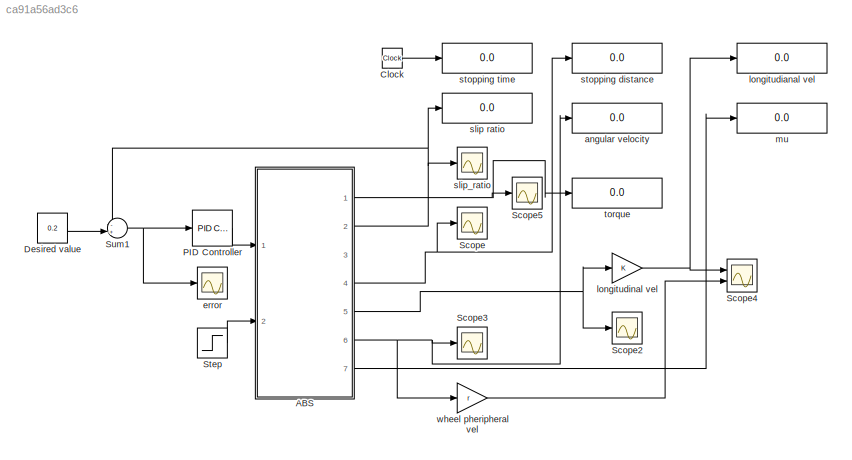
MODEL slx_ca91a56ad3c6
KIND model
CONFIG AbsTol = auto
CONFIG EnableMultiTasking = off
CONFIG FixedStep = auto
CONFIG MaxStep = auto
CONFIG MinStep = auto
CONFIG RelTol = 1e-3
CONFIG SampleTimeConstraint = Unconstrained
CONFIG SolverName = VariableStepAuto
CONFIG StartTime = 0.0
CONFIG StopTime = 50
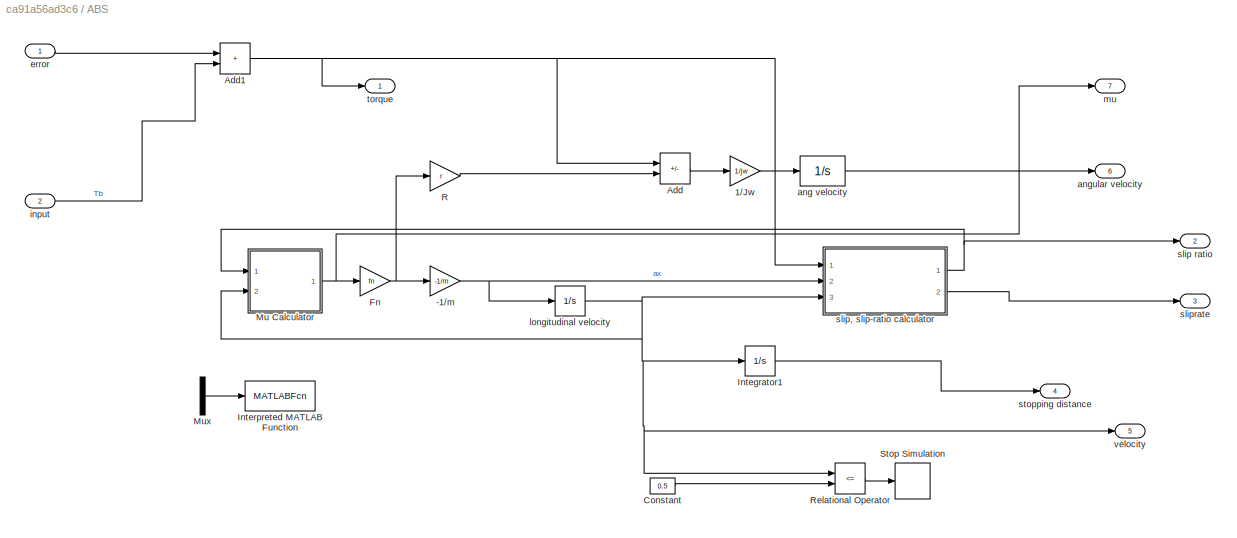
BLOCK [SubSystem] ABS
  Ports = [2, 7]
  RequestExecContextInheritance = off
BLOCK [Gain] ABS/-1//m
  Gain = -1/m
BLOCK [Gain] ABS/1//Jw
  Gain = 1/jw
BLOCK [Sum] ABS/Add
  IconShape = rectangular
  Inputs = -+
  Ports = [2, 1]
BLOCK [Sum] ABS/Add1
  IconShape = rectangular
  Ports = [2, 1]
BLOCK [Constant] ABS/Constant
  Value = 0.5
BLOCK [Gain] ABS/Fn
  Gain = fn
BLOCK [Integrator] ABS/Integrator1
  Ports = [1, 1]
BLOCK [MATLABFcn] ABS/Interpreted MATLAB Function
  MATLABFcn = 1-u(1)/u(2)+(u(2)==0)*eps
  Ports = [1, 1]
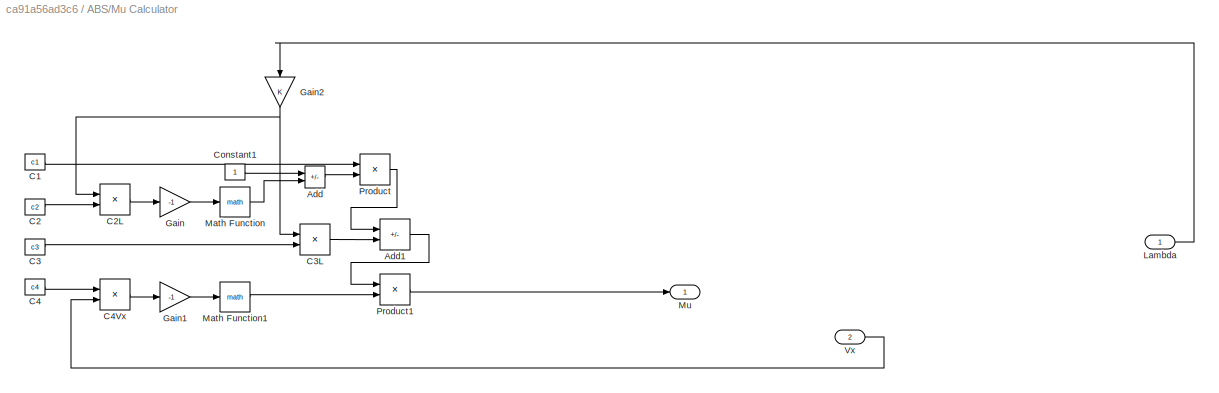
BLOCK [SubSystem] ABS/Mu Calculator
  Ports = [2, 1]
  RequestExecContextInheritance = off
BLOCK [Sum] ABS/Mu Calculator/Add
  IconShape = rectangular
  Inputs = +-
  Ports = [2, 1]
BLOCK [Sum] ABS/Mu Calculator/Add1
  IconShape = rectangular
  Inputs = +-
  Ports = [2, 1]
BLOCK [Constant] ABS/Mu Calculator/C1
  Value = c1
BLOCK [Constant] ABS/Mu Calculator/C2
  Value = c2
BLOCK [Product] ABS/Mu Calculator/C2L
  Ports = [2, 1]
BLOCK [Constant] ABS/Mu Calculator/C3
  Value = c3
BLOCK [Product] ABS/Mu Calculator/C3L
  Ports = [2, 1]
BLOCK [Constant] ABS/Mu Calculator/C4
  Value = c4
BLOCK [Product] ABS/Mu Calculator/C4Vx
  Ports = [2, 1]
BLOCK [Constant] ABS/Mu Calculator/Constant1
BLOCK [Gain] ABS/Mu Calculator/Gain
  Gain = -1
BLOCK [Gain] ABS/Mu Calculator/Gain1
  Gain = -1
BLOCK [Gain] ABS/Mu Calculator/Gain2
  NameLocation = left
BLOCK [Inport] ABS/Mu Calculator/Lambda
BLOCK [Math] ABS/Mu Calculator/Math Function
  Ports = [1, 1]
BLOCK [Math] ABS/Mu Calculator/Math Function1
  Ports = [1, 1]
BLOCK [Outport] ABS/Mu Calculator/Mu
BLOCK [Product] ABS/Mu Calculator/Product
  Ports = [2, 1]
BLOCK [Product] ABS/Mu Calculator/Product1
  Ports = [2, 1]
BLOCK [Inport] ABS/Mu Calculator/Vx
  Port = 2
BLOCK [Mux] ABS/Mux
  DisplayOption = bar
  Inputs = 2
  Ports = [2, 1]
BLOCK [Gain] ABS/R
  Gain = r
BLOCK [RelationalOperator] ABS/Relational Operator
  InputSameDT = off
  Operator = <=
  OutDataTypeStr = boolean
  Ports = [2, 1]
  RndMeth = Simplest
BLOCK [Stop] ABS/Stop Simulation
BLOCK [Integrator] ABS/ang velocity
  InitialCondition = 84.18
  LimitOutput = on
  LowerSaturationLimit = 0
  Ports = [1, 1]
BLOCK [Outport] ABS/angular velocity
  Port = 6
BLOCK [Inport] ABS/error
BLOCK [Inport] ABS/input
  Port = 2
BLOCK [Integrator] ABS/longitudinal velocity
  InitialCondition = 27.78
  LimitOutput = on
  LowerSaturationLimit = 0
  Ports = [1, 1]
BLOCK [Outport] ABS/mu
  Port = 7
BLOCK [Outport] ABS/slip ratio
  Port = 2
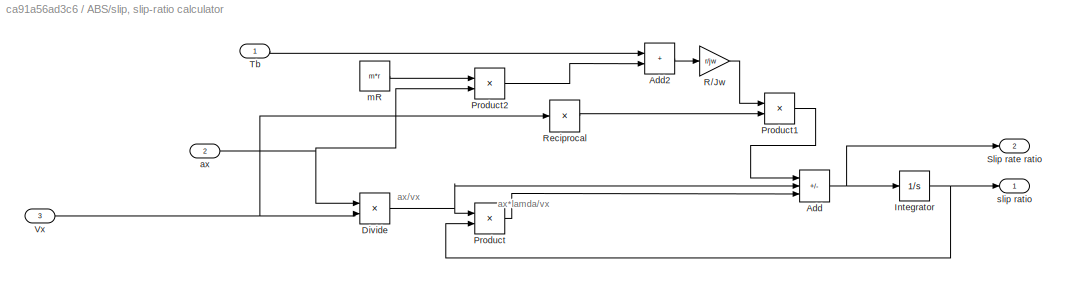
BLOCK [SubSystem] ABS/slip, slip-ratio calculator
  Ports = [3, 2]
  RequestExecContextInheritance = off
  ShowPortLabels = FromPortBlockName
BLOCK [Sum] ABS/slip, slip-ratio calculator/Add
  IconShape = rectangular
  Inputs = ++-
  Ports = [3, 1]
BLOCK [Sum] ABS/slip, slip-ratio calculator/Add2
  IconShape = rectangular
  Ports = [2, 1]
BLOCK [Product] ABS/slip, slip-ratio calculator/Divide
  Inputs = */
  Ports = [2, 1]
BLOCK [Integrator] ABS/slip, slip-ratio calculator/Integrator
  LimitOutput = on
  LowerSaturationLimit = 0
  Ports = [1, 1]
  UpperSaturationLimit = 1
BLOCK [Product] ABS/slip, slip-ratio calculator/Product
  Ports = [2, 1]
BLOCK [Product] ABS/slip, slip-ratio calculator/Product1
  Ports = [2, 1]
BLOCK [Product] ABS/slip, slip-ratio calculator/Product2
  Ports = [2, 1]
BLOCK [Gain] ABS/slip, slip-ratio calculator/R//Jw
  Gain = r/jw
BLOCK [Product] ABS/slip, slip-ratio calculator/Reciprocal
  Inputs = /
  Ports = [1, 1]
BLOCK [Outport] ABS/slip, slip-ratio calculator/Slip rate ratio
  Port = 2
BLOCK [Inport] ABS/slip, slip-ratio calculator/Tb
BLOCK [Inport] ABS/slip, slip-ratio calculator/Vx
  Port = 3
BLOCK [Inport] ABS/slip, slip-ratio calculator/ax
  Port = 2
BLOCK [Constant] ABS/slip, slip-ratio calculator/mR
  Value = m*r
BLOCK [Outport] ABS/slip, slip-ratio calculator/slip ratio
BLOCK [Outport] ABS/sliprate
  Port = 3
BLOCK [Outport] ABS/stopping distance
  Port = 4
BLOCK [Outport] ABS/torque
BLOCK [Outport] ABS/velocity
  Port = 5
BLOCK [Clock] Clock
BLOCK [Constant] Desired value
  Value = 0.2
BLOCK [Reference] PID Controller  REF=pid_lib/PID Controller
  Ports = [1, 1]
  SourceBlock = pid_lib/PID Controller
  SourceProductBaseCode = SL
  SourceType = PID 1dof
BLOCK [Scope] Scope
  Floating = off
  NumInputPorts = 1
  Ports = [1]
  ScopeSpecificationString = Simulink.scopes.TimeScopeBlockCfg('CurrentConfiguration', extmgr.ConfigurationSet(extmgr.Configuration('Core','General UI',true),extmgr.Configuration('Core','Source UI',true),extmgr.Configuration('Sources','WiredSimulink',true,'DataLoggingVariableName','ScopeData2'),extmgr.Configuration('Visuals','Time Domain',true,'SerializedDisplays',{struct('MinYLimReal','-7.49747','MaxYLimReal','67.47727','YLa...<+1393ch>
BLOCK [Scope] Scope2
  Floating = off
  NumInputPorts = 1
  Ports = [1]
  ScopeSpecificationString = Simulink.scopes.TimeScopeBlockCfg('CurrentConfiguration', extmgr.ConfigurationSet(extmgr.Configuration('Core','General UI',true),extmgr.Configuration('Core','Source UI',true),extmgr.Configuration('Sources','WiredSimulink',true,'DataLoggingVariableName','ScopeData3'),extmgr.Configuration('Visuals','Time Domain',true,'SerializedDisplays',{struct('MinYLimReal','-2.91','MaxYLimReal','31.19','YLabelRea...<+1375ch>
BLOCK [Scope] Scope3
  Floating = off
  NumInputPorts = 1
  Ports = [1]
  ScopeSpecificationString = Simulink.scopes.TimeScopeBlockCfg('CurrentConfiguration', extmgr.ConfigurationSet(extmgr.Configuration('Core','General UI',true),extmgr.Configuration('Core','Source UI',true),extmgr.Configuration('Sources','WiredSimulink',true,'DataLoggingVariableName','ScopeData4'),extmgr.Configuration('Visuals','Time Domain',true,'SerializedDisplays',{struct('MinYLimReal','-9.1594','MaxYLimReal','94.55104','YLab...<+1391ch>
BLOCK [Scope] Scope4
  Floating = off
  NumInputPorts = 2
  Ports = [2]
  ScopeSpecificationString = Simulink.scopes.TimeScopeBlockCfg('CurrentConfiguration', extmgr.ConfigurationSet(extmgr.Configuration('Core','General UI',true),extmgr.Configuration('Core','Source UI',true),extmgr.Configuration('Sources','WiredSimulink',true,'DataLoggingVariableName','ScopeData5'),extmgr.Configuration('Visuals','Time Domain',true,'SerializedDisplays',{struct('MinYLimReal','-3.02268','MaxYLimReal','31.20252','YLa...<+1474ch>
BLOCK [Scope] Scope5
  Floating = off
  NumInputPorts = 1
  Ports = [1]
  ScopeSpecificationString = Simulink.scopes.TimeScopeBlockCfg('CurrentConfiguration', extmgr.ConfigurationSet(extmgr.Configuration('Core','General UI',true),extmgr.Configuration('Core','Source UI',true),extmgr.Configuration('Sources','WiredSimulink',true,'DataLoggingVariableName','ScopeData1'),extmgr.Configuration('Visuals','Time Domain',true,'SerializedDisplays',{struct('MinYLimReal','220.40115','MaxYLimReal','2864.39987','...<+1440ch>
BLOCK [Step] Step
  After = tb
  SampleTime = 0
BLOCK [Sum] Sum1
  Inputs = -+|
  Ports = [2, 1]
BLOCK [Display] angular velocity
  Decimation = 1
  Ports = [1]
BLOCK [Scope] error
  Floating = off
  NumInputPorts = 1
  Ports = [1]
  ScopeSpecificationString = Simulink.scopes.TimeScopeBlockCfg('CurrentConfiguration', extmgr.ConfigurationSet(extmgr.Configuration('Core','General UI',true),extmgr.Configuration('Core','Source UI',true),extmgr.Configuration('Sources','WiredSimulink',true,'DataLoggingVariableName','ScopeData1'),extmgr.Configuration('Visuals','Time Domain',true,'SerializedDisplays',{struct('MinYLimReal','-0.925','MaxYLimReal','0.325','YLabelRe...<+1457ch>
BLOCK [Display] longitudianal vel
  Decimation = 1
  Ports = [1]
BLOCK [Gain] longitudinal vel
BLOCK [Display] mu
  Decimation = 1
  Ports = [1]
BLOCK [Display] slip ratio
  Decimation = 1
  Ports = [1]
BLOCK [Scope] slip_ratio
  Floating = off
  NumInputPorts = 1
  Ports = [1]
  ScopeSpecificationString = Simulink.scopes.TimeScopeBlockCfg('CurrentConfiguration', extmgr.ConfigurationSet(extmgr.Configuration('Core','General UI',true),extmgr.Configuration('Core','Source UI',true),extmgr.Configuration('Sources','WiredSimulink',true,'DataLoggingVariableName','ScopeData4'),extmgr.Configuration('Visuals','Time Domain',true,'SerializedDisplays',{struct('MinYLimReal','-0.03482','MaxYLimReal','0.31342','YLab...<+1418ch>
BLOCK [Display] stopping distance
  Decimation = 1
  Ports = [1]
BLOCK [Display] stopping time
  Decimation = 1
  Ports = [1]
BLOCK [Display] torque
  Decimation = 1
  Ports = [1]
BLOCK [Gain] wheel pheripheral vel
  Gain = r
ANNOTATION ABS/slip, slip-ratio calculator: ax*lamda/vx
ANNOTATION ABS/slip, slip-ratio calculator: ax/vx
NET ABS/-1//m:1 -> ABS/longitudinal velocity:1, ABS/slip, slip-ratio calculator:2
LINE ABS/1//Jw:1 -> ABS/ang velocity:1
NET ABS/Add1:1 -> ABS/Add:1, ABS/slip, slip-ratio calculator:1, ABS/torque:1
LINE ABS/Add:1 -> ABS/1//Jw:1
LINE ABS/Constant:1 -> ABS/Relational Operator:2
NET ABS/Fn:1 -> ABS/-1//m:1, ABS/R:1
LINE ABS/Integrator1:1 -> ABS/stopping distance:1
LINE ABS/Mu Calculator/Add1:1 -> ABS/Mu Calculator/Product1:1
LINE ABS/Mu Calculator/Add:1 -> ABS/Mu Calculator/Product:2
LINE ABS/Mu Calculator/C1:1 -> ABS/Mu Calculator/Product:1
LINE ABS/Mu Calculator/C2:1 -> ABS/Mu Calculator/C2L:2
LINE ABS/Mu Calculator/C2L:1 -> ABS/Mu Calculator/Gain:1
LINE ABS/Mu Calculator/C3:1 -> ABS/Mu Calculator/C3L:2
LINE ABS/Mu Calculator/C3L:1 -> ABS/Mu Calculator/Add1:2
LINE ABS/Mu Calculator/C4:1 -> ABS/Mu Calculator/C4Vx:1
LINE ABS/Mu Calculator/C4Vx:1 -> ABS/Mu Calculator/Gain1:1
LINE ABS/Mu Calculator/Constant1:1 -> ABS/Mu Calculator/Add:1
LINE ABS/Mu Calculator/Gain1:1 -> ABS/Mu Calculator/Math Function1:1
NET ABS/Mu Calculator/Gain2:1 -> ABS/Mu Calculator/C2L:1, ABS/Mu Calculator/C3L:1
LINE ABS/Mu Calculator/Gain:1 -> ABS/Mu Calculator/Math Function:1
LINE ABS/Mu Calculator/Lambda:1 -> ABS/Mu Calculator/Gain2:1
LINE ABS/Mu Calculator/Math Function1:1 -> ABS/Mu Calculator/Product1:2
LINE ABS/Mu Calculator/Math Function:1 -> ABS/Mu Calculator/Add:2
LINE ABS/Mu Calculator/Product1:1 -> ABS/Mu Calculator/Mu:1
LINE ABS/Mu Calculator/Product:1 -> ABS/Mu Calculator/Add1:1
LINE ABS/Mu Calculator/Vx:1 -> ABS/Mu Calculator/C4Vx:2
NET ABS/Mu Calculator:1 -> ABS/Fn:1, ABS/mu:1
LINE ABS/Mux:1 -> ABS/Interpreted MATLAB Function:1
LINE ABS/R:1 -> ABS/Add:2
LINE ABS/Relational Operator:1 -> ABS/Stop Simulation:1
LINE ABS/ang velocity:1 -> ABS/angular velocity:1
LINE ABS/error:1 -> ABS/Add1:1
LINE ABS/input:1 -> ABS/Add1:2
NET ABS/longitudinal velocity:1 -> ABS/Integrator1:1, ABS/Mu Calculator:2, ABS/Relational Operator:1, ABS/slip, slip-ratio calculator:3, ABS/velocity:1
LINE ABS/slip, slip-ratio calculator/Add2:1 -> ABS/slip, slip-ratio calculator/R//Jw:1
NET ABS/slip, slip-ratio calculator/Add:1 -> ABS/slip, slip-ratio calculator/Integrator:1, ABS/slip, slip-ratio calculator/Slip rate ratio:1
NET ABS/slip, slip-ratio calculator/Divide:1 -> ABS/slip, slip-ratio calculator/Add:2, ABS/slip, slip-ratio calculator/Product:1
NET ABS/slip, slip-ratio calculator/Integrator:1 -> ABS/slip, slip-ratio calculator/Product:2, ABS/slip, slip-ratio calculator/slip ratio:1
LINE ABS/slip, slip-ratio calculator/Product1:1 -> ABS/slip, slip-ratio calculator/Add:1
LINE ABS/slip, slip-ratio calculator/Product2:1 -> ABS/slip, slip-ratio calculator/Add2:2
LINE ABS/slip, slip-ratio calculator/Product:1 -> ABS/slip, slip-ratio calculator/Add:3
LINE ABS/slip, slip-ratio calculator/R//Jw:1 -> ABS/slip, slip-ratio calculator/Product1:1
LINE ABS/slip, slip-ratio calculator/Reciprocal:1 -> ABS/slip, slip-ratio calculator/Product1:2
LINE ABS/slip, slip-ratio calculator/Tb:1 -> ABS/slip, slip-ratio calculator/Add2:1
NET ABS/slip, slip-ratio calculator/Vx:1 -> ABS/slip, slip-ratio calculator/Divide:2, ABS/slip, slip-ratio calculator/Reciprocal:1
NET ABS/slip, slip-ratio calculator/ax:1 -> ABS/slip, slip-ratio calculator/Divide:1, ABS/slip, slip-ratio calculator/Product2:2
LINE ABS/slip, slip-ratio calculator/mR:1 -> ABS/slip, slip-ratio calculator/Product2:1
NET ABS/slip, slip-ratio calculator:1 -> ABS/Mu Calculator:1, ABS/slip ratio:1
LINE ABS/slip, slip-ratio calculator:2 -> ABS/sliprate:1
NET ABS:1 -> Scope5:1, torque:1
NET ABS:2 -> Sum1:1, slip ratio:1, slip_ratio:1
NET ABS:4 -> Scope:1, stopping distance:1
NET ABS:5 -> Scope2:1, longitudinal vel:1
NET ABS:6 -> Scope3:1, angular velocity:1, wheel pheripheral vel:1
LINE ABS:7 -> mu:1
LINE Clock:1 -> stopping time:1
LINE Desired value:1 -> Sum1:2
LINE PID Controller:1 -> ABS:1
LINE Step:1 -> ABS:2
NET Sum1:1 -> PID Controller:1, error:1
NET longitudinal vel:1 -> Scope4:1, longitudianal vel:1
LINE wheel pheripheral vel:1 -> Scope4:2
note: NET lines group one-source signal fan-out (src -> all destinations, sorted); 1:1 wires keep LINE
